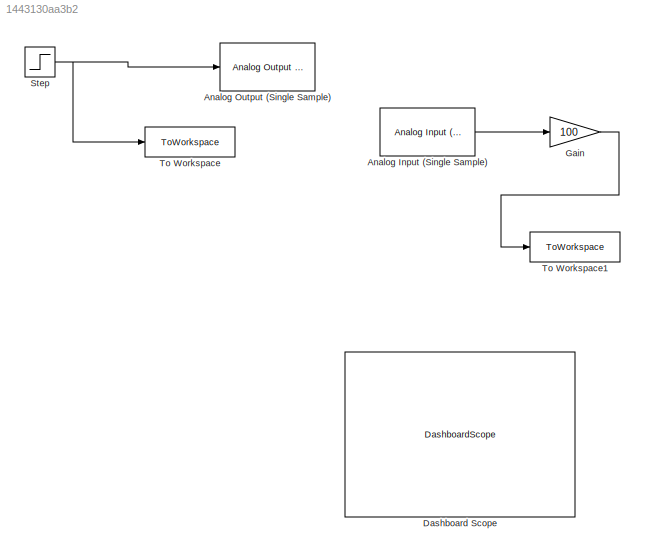
MODEL slx_1443130aa3b2
KIND model
CONFIG AbsTol = auto
CONFIG EnableMultiTasking = off
CONFIG FixedStep = auto
CONFIG MaxStep = auto
CONFIG MinStep = auto
CONFIG RelTol = 1e-3
CONFIG SampleTimeConstraint = Unconstrained
CONFIG SolverName = VariableStepAuto
CONFIG StartTime = 0.0
CONFIG StopTime = 10.0
BLOCK [Reference] Analog Input (Single Sample)  REF=daqlib/Analog Input
(Single Sample)
  SourceBlock = daqlib/Analog Input\n(Single Sample)
  SourceType = Analog Input (Single Sample)
BLOCK [Reference] Analog Output (Single Sample)  REF=daqlib/Analog Output
(Single Sample)
  SourceBlock = daqlib/Analog Output\n(Single Sample)
  SourceType = Analog Output (Single Sample)
BLOCK [DashboardScope] Dashboard Scope
BLOCK [Gain] Gain
  Gain = 100
BLOCK [Step] Step
  After = 5
  SampleTime = 0
  Time = 0
BLOCK [ToWorkspace] To Workspace
  FixptAsFi = on
  MaxDataPoints = inf
  SampleTime = -1
  SaveFormat = Timeseries
  VariableName = entrada
BLOCK [ToWorkspace] To Workspace1
  FixptAsFi = on
  MaxDataPoints = inf
  SampleTime = -1
  SaveFormat = Timeseries
  VariableName = salida
LINE Analog Input (Single Sample):1 -> Gain:1
LINE Gain:1 -> To Workspace1:1
NET Step:1 -> Analog Output (Single Sample):1, To Workspace:1
note: NET lines group one-source signal fan-out (src -> all destinations, sorted); 1:1 wires keep LINE
